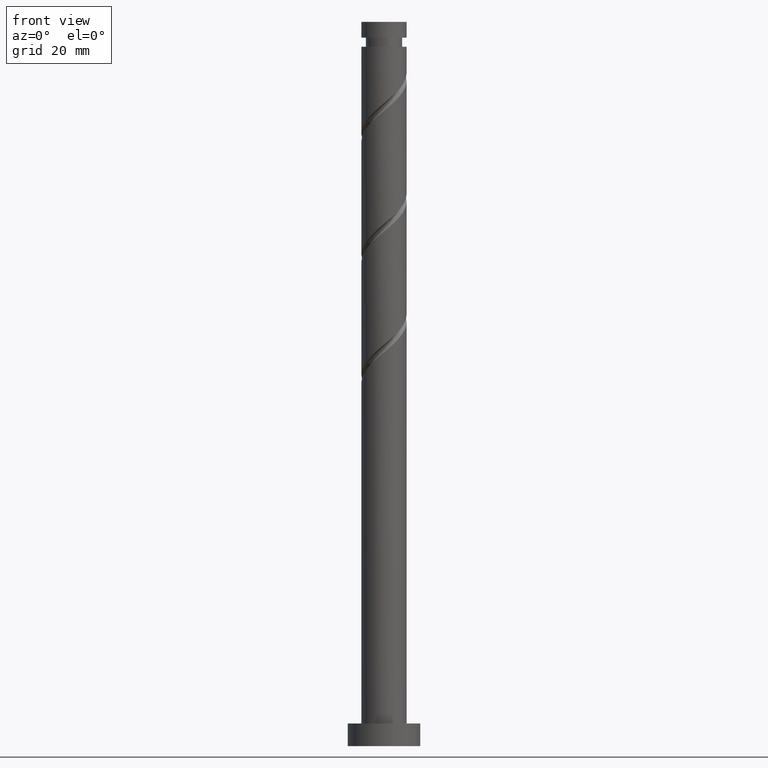
[diagram: clean part render]
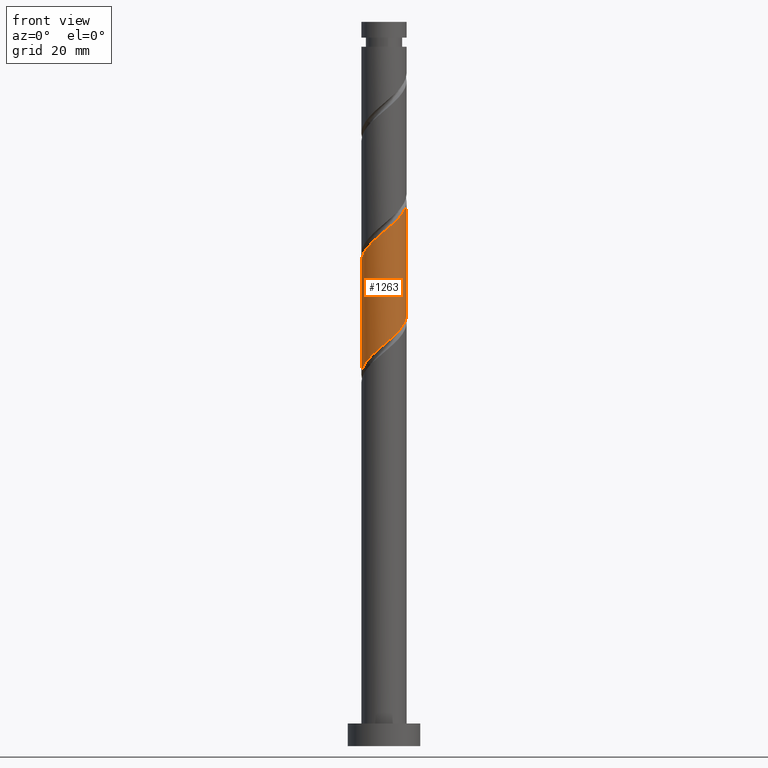
[diagram: same view with one face highlighted and labeled with its STEP entity id]
A machine part, front view. The second image highlights one B-rep face of the part: STEP entity #1263.
In plain terms, the highlighted cylindrical surface (edge-blend (fillet) strip) has radius 5 mm, axis along (-0, -0, -1).
Its self-contained STEP definition (entity closure, byte-faithful):
#28 = CARTESIAN_POINT ( 'NONE',  ( 3.486176702121021709, -3.584211489517420635, 116.9387377609326819 ) ) ;
#44 = EDGE_CURVE ( 'NONE', #786, #493, #669, .T. ) ;
#60 = CARTESIAN_POINT ( 'NONE',  ( -5.000000000000006217, -0.1438776326191145982, 107.1204721954408967 ) ) ;
#77 = CARTESIAN_POINT ( 'NONE',  ( 2.970844888841024378, -4.085448028313401814, 116.3326771548720444 ) ) ;
#86 = CARTESIAN_POINT ( 'NONE',  ( 1.699501077681991434, -4.756942403746386105, 115.1205559427508405 ) ) ;
#117 = CARTESIAN_POINT ( 'NONE',  ( 1.812103308943839419, -4.660073132228159665, 90.27207109426601050 ) ) ;
#125 = CARTESIAN_POINT ( 'NONE',  ( -4.870529496359500499, -1.130461155941268059, 82.99934382153873003 ) ) ;
#161 = CARTESIAN_POINT ( 'NONE',  ( -4.991726541412356610, -0.2875171921111925877, 107.2417680639629651 ) ) ;
#175 =( BOUNDED_CURVE ( )  B_SPLINE_CURVE ( 2, ( #1273, #266, #250, #1385, #1157, #242, #1166, #1539, #391, #1654, #117, #383, #1290, #1255, #616, #1139, #1636, #497, #235, #488, #367, #1646, #125, #1016, #755 ),
 .UNSPECIFIED., .F., .T. ) 
 B_SPLINE_CURVE_WITH_KNOTS ( ( 3, 2, 2, 2, 2, 2, 2, 2, 2, 2, 2, 2, 3 ),
 ( 0.8045252162417511066, 0.8068181818181817677, 0.8181818181818182323, 0.8295454545454545858, 0.8409090909090909394, 0.8522727272727272929, 0.8636363636363636465, 0.8750000000000000000, 0.8863636363636363535, 0.8977272727272727071, 0.9090909090909090606, 0.9204545454545454142, 0.9295252162417513286 ),
 .UNSPECIFIED. ) 
 CURVE ( )  GEOMETRIC_REPRESENTATION_ITEM ( )  RATIONAL_B_SPLINE_CURVE ( ( 0.9061101570135534633, 0.9072237824201355716, 0.9090909090909131685, 0.8998376744372155178, 0.9090909090909131685, 0.8998376744372155178, 0.9090909090909131685, 0.8998376744372155178, 0.9090909090909131685, 0.8998376744372155178, 0.9090909090909131685, 0.8998376744372155178, 0.9090909090909131685, 0.8998376744372155178, 0.9090909090909131685, 0.8998376744372155178, 0.9090909090909131685, 0.8998376744372155178, 0.9090909090909131685, 0.8998376744372155178, 0.9090909090909131685, 0.8998376744372155178, 0.9090909090909131685, 0.9017048011079928926, 0.9061101570135534633 ) ) 
 REPRESENTATION_ITEM ( '' )  );
#200 = CYLINDRICAL_SURFACE ( 'NONE', #649, 5.000000000000000000 ) ;
#208 = CARTESIAN_POINT ( 'NONE',  ( -4.466659368005212016, -2.359186096053888626, 109.0599498821447924 ) ) ;
#235 = CARTESIAN_POINT ( 'NONE',  ( -3.486176702121015047, -3.584211489517412197, 85.42358624578113790 ) ) ;
#242 = CARTESIAN_POINT ( 'NONE',  ( 4.466659368005205799, -2.359186096053885073, 93.30237412456904167 ) ) ;
#250 = CARTESIAN_POINT ( 'NONE',  ( 4.991726541412347729, -0.2875171921111941420, 95.12055594275084047 ) ) ;
#266 = CARTESIAN_POINT ( 'NONE',  ( 5.000000000000000888, -0.1438776326191028299, 95.24185181127293731 ) ) ;
#270 = VERTEX_POINT ( 'NONE', #1247 ) ;
#275 = CARTESIAN_POINT ( 'NONE',  ( -4.950387810036383840, -1.005219118324889527, 107.8478286700235884 ) ) ;
#282 = FACE_OUTER_BOUND ( 'NONE', #775, .T. ) ;
#311 = ORIENTED_EDGE ( 'NONE', *, *, #464, .F. ) ;
#330 = CARTESIAN_POINT ( 'NONE',  ( -3.051594711005890748, -3.960778928413065003, 110.8781317003266054 ) ) ;
#360 = DIRECTION ( 'NONE',  ( -0.000000000000000000, -0.000000000000000000, -1.000000000000000000 ) ) ;
#367 = CARTESIAN_POINT ( 'NONE',  ( -4.354751117665845328, -2.456856264250733002, 84.21146503365994818 ) ) ;
#383 = CARTESIAN_POINT ( 'NONE',  ( 1.142085944100263095, -4.920614254530754295, 89.66601048820541564 ) ) ;
#391 = CARTESIAN_POINT ( 'NONE',  ( 3.051594711005883642, -3.960778928413059674, 91.48419230638718602 ) ) ;
#420 = VERTEX_POINT ( 'NONE', #904 ) ;
#442 = CARTESIAN_POINT ( 'NONE',  ( 0.000000000000000000, 0.000000000000000000, 160.0000000000000000 ) ) ;
#461 = CARTESIAN_POINT ( 'NONE',  ( 4.707993719930686716, -1.830737577780037428, 118.7569195791144523 ) ) ;
#464 = EDGE_CURVE ( 'NONE', #493, #420, #175, .T. ) ;
#488 = CARTESIAN_POINT ( 'NONE',  ( -4.001508515401012822, -3.082974950721431018, 84.81752563972057146 ) ) ;
#493 = VERTEX_POINT ( 'NONE', #1403 ) ;
#497 = CARTESIAN_POINT ( 'NONE',  ( -2.970844888841019937, -4.085448028313397373, 86.02964685184177540 ) ) ;
#508 = ORIENTED_EDGE ( 'NONE', *, *, #689, .T. ) ;
#539 = VECTOR ( 'NONE', #360, 1000.000000000000000 ) ;
#579 = CARTESIAN_POINT ( 'NONE',  ( -4.708523589020798816, -1.682202607189388521, 108.4538892760841833 ) ) ;
#616 = CARTESIAN_POINT ( 'NONE',  ( -0.9949874371066220746, -4.899999999999999467, 87.84782867002355999 ) ) ;
#649 = AXIS2_PLACEMENT_3D ( 'NONE', #442, #718, #982 ) ;
#669 = LINE ( 'NONE', #679, #965 ) ;
#679 = CARTESIAN_POINT ( 'NONE',  ( 5.000000000000000000, 6.123233995736766282E-16, 160.0000000000000000 ) ) ;
#680 = CARTESIAN_POINT ( 'NONE',  ( -4.043864058114787774, -2.940605971477222358, 109.6660104882053872 ) ) ;
#689 = EDGE_CURVE ( 'NONE', #270, #420, #1120, .T. ) ;
#718 = DIRECTION ( 'NONE',  ( -0.000000000000000000, -0.000000000000000000, -1.000000000000000000 ) ) ;
#726 = CARTESIAN_POINT ( 'NONE',  ( 5.000000000000007994, -0.5726446369256164015, 119.8457475710847291 ) ) ;
#755 = CARTESIAN_POINT ( 'NONE',  ( -5.000000000000000000, 5.444282736072736138E-15, 82.03061648265779127 ) ) ;
#775 = EDGE_LOOP ( 'NONE', ( #947, #1382, #508, #311 ) ) ;
#786 = VERTEX_POINT ( 'NONE', #1068 ) ;
#832 = CARTESIAN_POINT ( 'NONE',  ( -2.482120673787422405, -4.399532009925576581, 111.4841923063871860 ) ) ;
#840 = CARTESIAN_POINT ( 'NONE',  ( -0.4258060737845069110, -4.981835925392195108, 113.3023741245690275 ) ) ;
#848 = CARTESIAN_POINT ( 'NONE',  ( 4.354751117665853322, -2.456856264250739219, 118.1508589730538858 ) ) ;
#854 =( BOUNDED_CURVE ( )  B_SPLINE_CURVE ( 2, ( #1589, #60, #161, #275, #579, #208, #680, #1345, #330, #832, #973, #1354, #840, #1107, #1230, #86, #926, #77, #28, #1097, #848, #461, #1476, #726, #1597 ),
 .UNSPECIFIED., .F., .T. ) 
 B_SPLINE_CURVE_WITH_KNOTS ( ( 3, 2, 2, 2, 2, 2, 2, 2, 2, 2, 2, 2, 3 ),
 ( 0.3045252162417513286, 0.3068181818181817677, 0.3181818181818182323, 0.3295454545454545858, 0.3409090909090909394, 0.3522727272727272929, 0.3636363636363636465, 0.3750000000000000000, 0.3863636363636363535, 0.3977272727272727071, 0.4090909090909090606, 0.4204545454545454142, 0.4295252162417512731 ),
 .UNSPECIFIED. ) 
 CURVE ( )  GEOMETRIC_REPRESENTATION_ITEM ( )  RATIONAL_B_SPLINE_CURVE ( ( 0.9061101570135606798, 0.9072237824201427880, 0.9090909090909202739, 0.8998376744372226232, 0.9090909090909202739, 0.8998376744372226232, 0.9090909090909202739, 0.8998376744372226232, 0.9090909090909202739, 0.8998376744372226232, 0.9090909090909202739, 0.8998376744372226232, 0.9090909090909202739, 0.8998376744372226232, 0.9090909090909202739, 0.8998376744372226232, 0.9090909090909202739, 0.8998376744372226232, 0.9090909090909202739, 0.8998376744372226232, 0.9090909090909202739, 0.8998376744372226232, 0.9090909090909202739, 0.9017048011080001091, 0.9061101570135605687 ) ) 
 REPRESENTATION_ITEM ( '' )  );
#904 = CARTESIAN_POINT ( 'NONE',  ( -5.000000000000000000, 5.444282736072736138E-15, 82.03061648265779127 ) ) ;
#926 = CARTESIAN_POINT ( 'NONE',  ( 2.335172983261507795, -4.421195216029893515, 115.7266165488114495 ) ) ;
#947 = ORIENTED_EDGE ( 'NONE', *, *, #44, .F. ) ;
#965 = VECTOR ( 'NONE', #1052, 1000.000000000000000 ) ;
#973 = CARTESIAN_POINT ( 'NONE',  ( -1.812103308943844748, -4.660073132228168546, 112.0902529124477951 ) ) ;
#982 = DIRECTION ( 'NONE',  ( -1.000000000000000000, 0.000000000000000000, 0.000000000000000000 ) ) ;
#1016 = CARTESIAN_POINT ( 'NONE',  ( -5.000000000000001776, -0.5726446369256107394, 82.51657643562909072 ) ) ;
#1052 = DIRECTION ( 'NONE',  ( -0.000000000000000000, -0.000000000000000000, -1.000000000000000000 ) ) ;
#1068 = CARTESIAN_POINT ( 'NONE',  ( 5.000000000000007994, 3.903730203612562477E-15, 120.3317075240560285 ) ) ;
#1097 = CARTESIAN_POINT ( 'NONE',  ( 4.001508515401017263, -3.082974950721437679, 117.5447983669932626 ) ) ;
#1107 = CARTESIAN_POINT ( 'NONE',  ( 0.2904737965312516601, -5.043057596253627040, 113.9084347306296223 ) ) ;
#1120 = LINE ( 'NONE', #1248, #539 ) ;
#1139 = CARTESIAN_POINT ( 'NONE',  ( -1.699501077681990768, -4.756942403746379000, 87.24176806396296513 ) ) ;
#1157 = CARTESIAN_POINT ( 'NONE',  ( 4.708523589020789935, -1.682202607189386967, 93.90843473062960811 ) ) ;
#1166 = CARTESIAN_POINT ( 'NONE',  ( 4.043864058114778892, -2.940605971477217473, 92.69631351850840417 ) ) ;
#1230 = CARTESIAN_POINT ( 'NONE',  ( 0.9949874371066216305, -4.900000000000007461, 114.5144953366902456 ) ) ;
#1247 = CARTESIAN_POINT ( 'NONE',  ( -5.000000000000007994, -4.098168872758016579E-15, 106.9983741907226857 ) ) ;
#1248 = CARTESIAN_POINT ( 'NONE',  ( -5.000000000000000000, 0.000000000000000000, 160.0000000000000000 ) ) ;
#1255 = CARTESIAN_POINT ( 'NONE',  ( -0.2904737965312536030, -5.043057596253620822, 88.45388927608419749 ) ) ;
#1263 = ADVANCED_FACE ( 'NONE', ( #282 ), #200, .T. ) ;
#1273 = CARTESIAN_POINT ( 'NONE',  ( 5.000000000000000000, 7.343798965416794784E-15, 95.36394981599116250 ) ) ;
#1290 = CARTESIAN_POINT ( 'NONE',  ( 0.4258060737845039134, -4.981835925392186226, 89.05994988214477814 ) ) ;
#1333 = EDGE_CURVE ( 'NONE', #270, #786, #854, .T. ) ;
#1345 = CARTESIAN_POINT ( 'NONE',  ( -3.621068748224359091, -3.522025846900554313, 110.2720710942659679 ) ) ;
#1354 = CARTESIAN_POINT ( 'NONE',  ( -1.142085944100265760, -4.920614254530760512, 112.6963135185084042 ) ) ;
#1382 = ORIENTED_EDGE ( 'NONE', *, *, #1333, .F. ) ;
#1385 = CARTESIAN_POINT ( 'NONE',  ( 4.950387810036377623, -1.005219118324889971, 94.51449533669024561 ) ) ;
#1403 = CARTESIAN_POINT ( 'NONE',  ( 5.000000000000000000, 7.343798965416794784E-15, 95.36394981599116250 ) ) ;
#1476 = CARTESIAN_POINT ( 'NONE',  ( 4.870529496359508492, -1.130461155941271389, 119.3629801851750756 ) ) ;
#1539 = CARTESIAN_POINT ( 'NONE',  ( 3.621068748224353762, -3.522025846900549428, 92.09025291244783773 ) ) ;
#1589 = CARTESIAN_POINT ( 'NONE',  ( -5.000000000000007994, -4.098168872758016579E-15, 106.9983741907226857 ) ) ;
#1597 = CARTESIAN_POINT ( 'NONE',  ( 5.000000000000007994, 3.903730203612562477E-15, 120.3317075240560285 ) ) ;
#1636 = CARTESIAN_POINT ( 'NONE',  ( -2.335172983261505131, -4.421195216029887298, 86.63570745790232763 ) ) ;
#1646 = CARTESIAN_POINT ( 'NONE',  ( -4.707993719930677834, -1.830737577780034542, 83.60540442759935331 ) ) ;
#1654 = CARTESIAN_POINT ( 'NONE',  ( 2.482120673787417520, -4.399532009925572140, 90.87813170032661958 ) ) ;